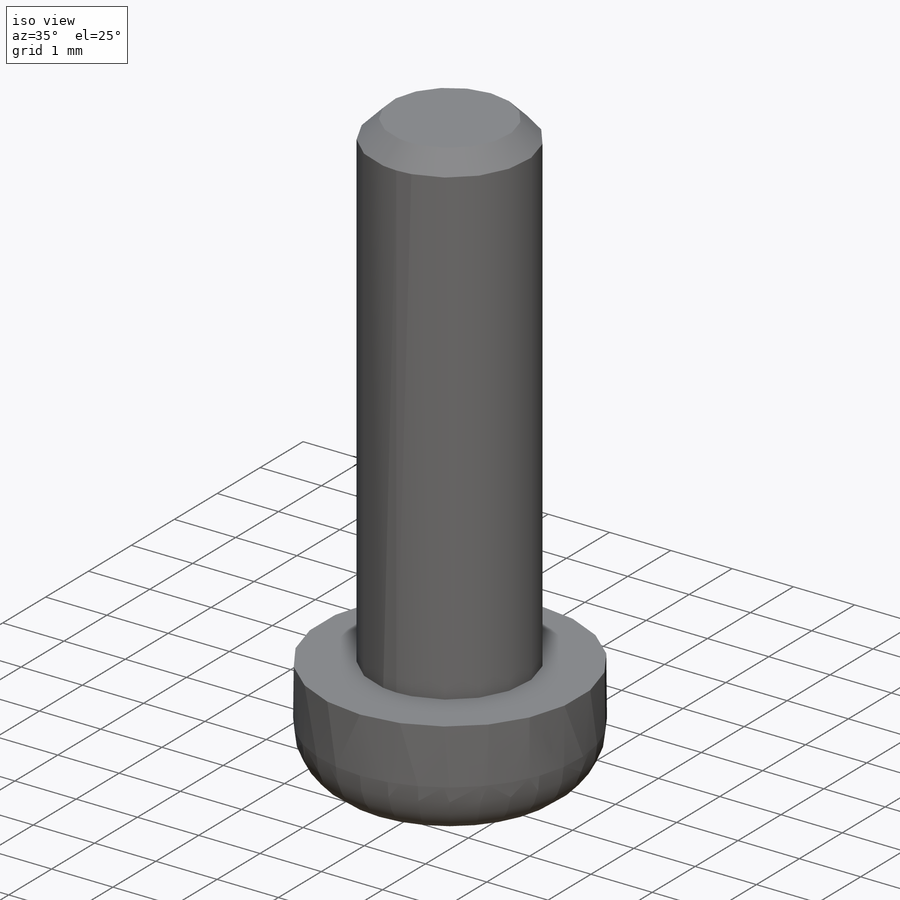
[diagram: iso view]
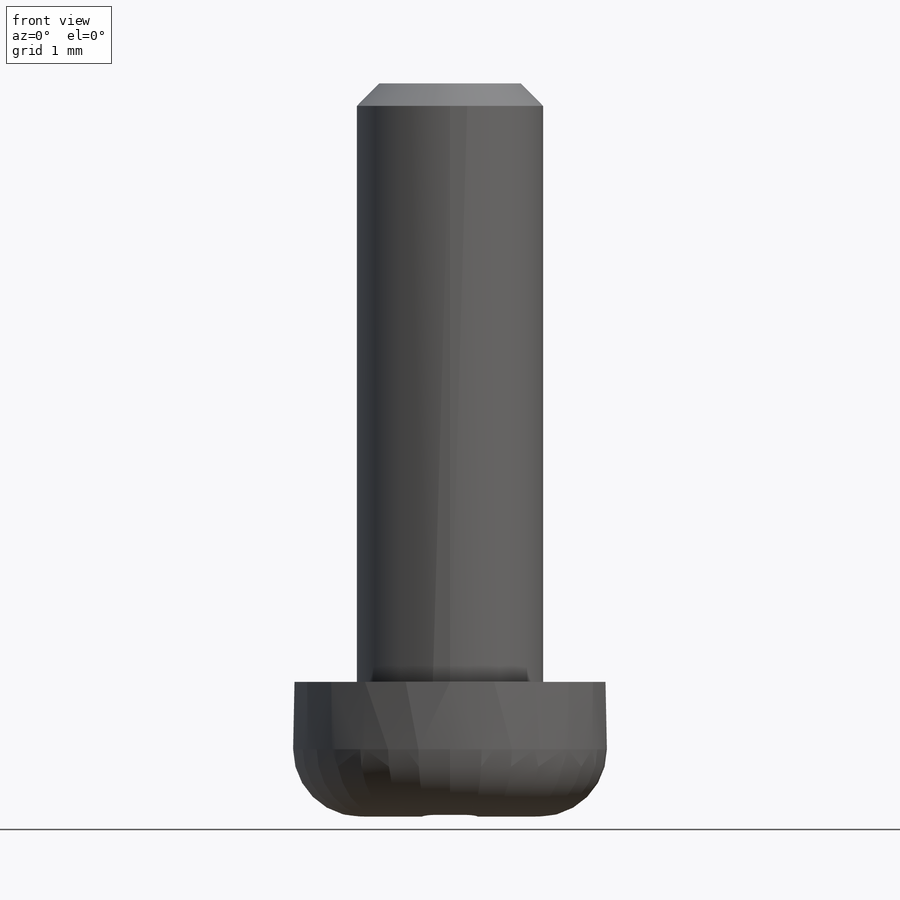
[diagram: front view]
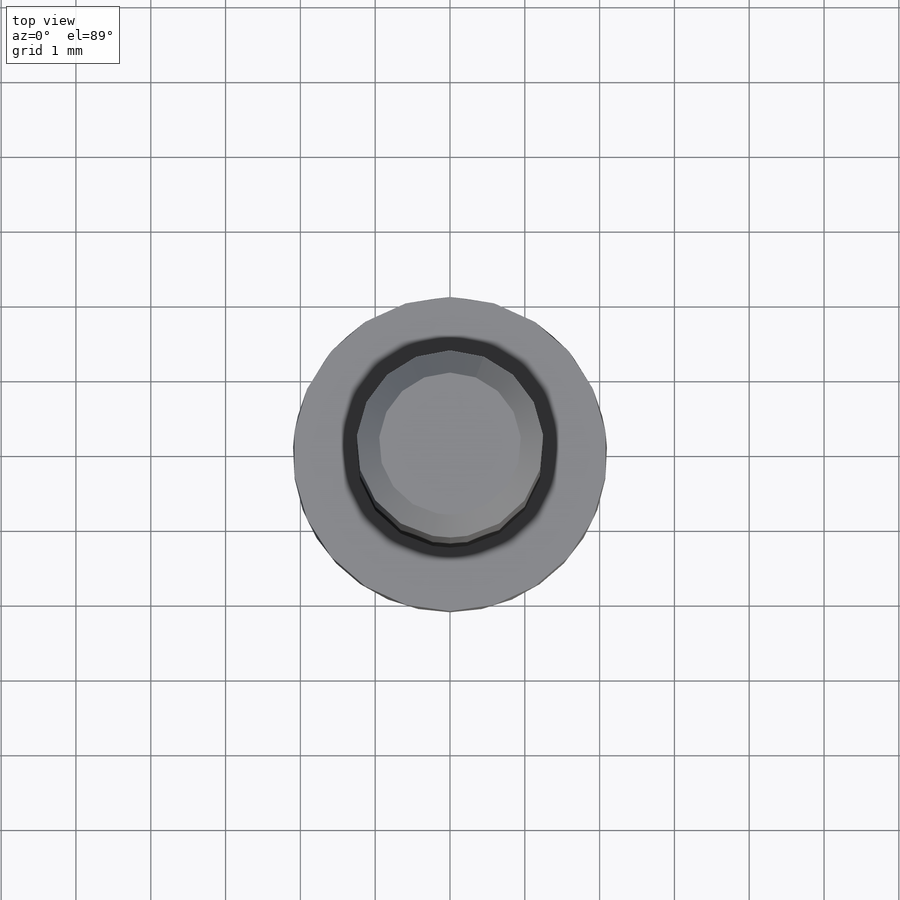
[diagram: top view]
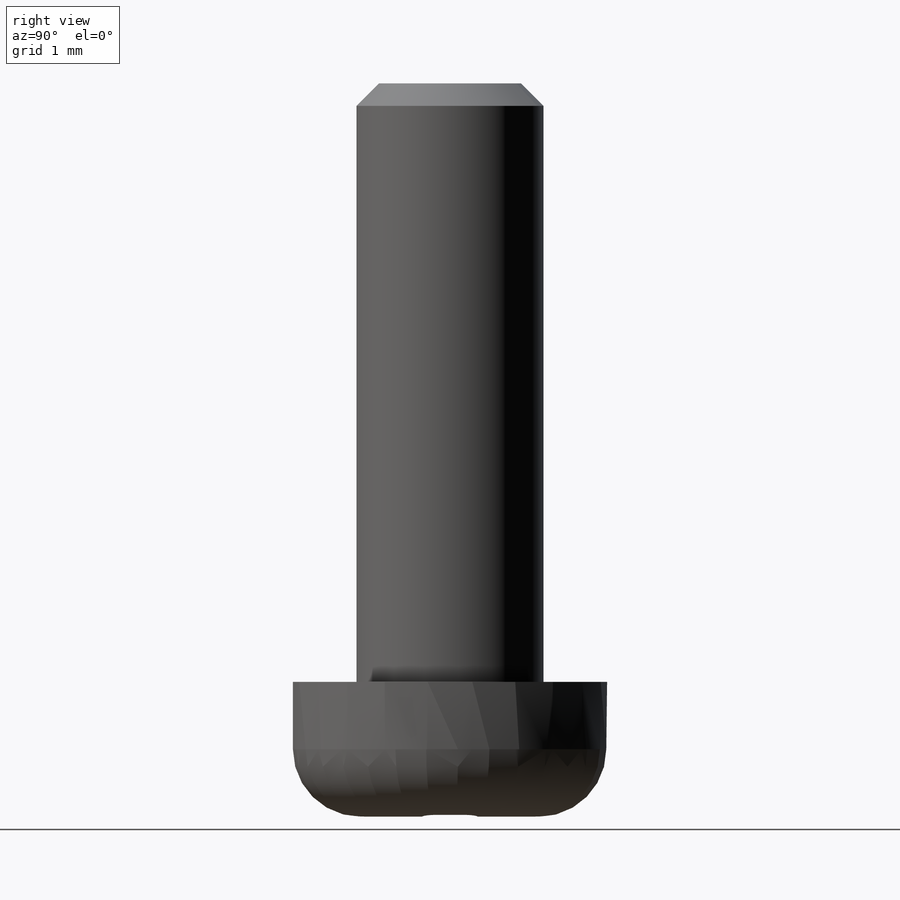
[diagram: right view]
SOLIDWORKS PART (.sldprt)
format: sldprt  version: not decoded by parser v0  size: 280,064 bytes
history: native  units: mm
features: plane x3, sketch x3, extrude x2, material x1, cut_extrude x1, fillet x1, chamfer x1 (+9 scaffold rows collapsed)
feature tree (21):
  scaffold x9  (default folders/planes/origin — collapsed)
  material  "Материал <не указан>"
  plane  "Спереди"
  plane  "Сверху"
  plane  "Справа"
  sketch  "Эскиз1"  dims[D1=2.4mm]
  extrude  "Бобышка-Вытянуть1"  Depth=8mm
  extrude  "Бобышка-Вытянуть2"  [1 undecoded]
  sketch  "Эскиз1<3>"  dims[D1=1.8mm]
  sketch  "Эскиз2"  dims[c1.D1=0.2mm c1.D2=0.2mm c2.D1=0.9mm c2.D2=2.8mm c3.D1=2.8mm c3.D2=0.9mm]
  cut_extrude  "Вырез-Вытянуть7"  Depth=1mm
  fillet  "Скругление1"  Radius=0.9mm
  chamfer  "Фаска1"  Distance=0.3mm Angle=45deg
decode coverage: 7 of 8 modeling features carry decoded parameters
note: 1 parameter value undecoded
note: suppression state not decoded; provenance and decode notes live in map.json
